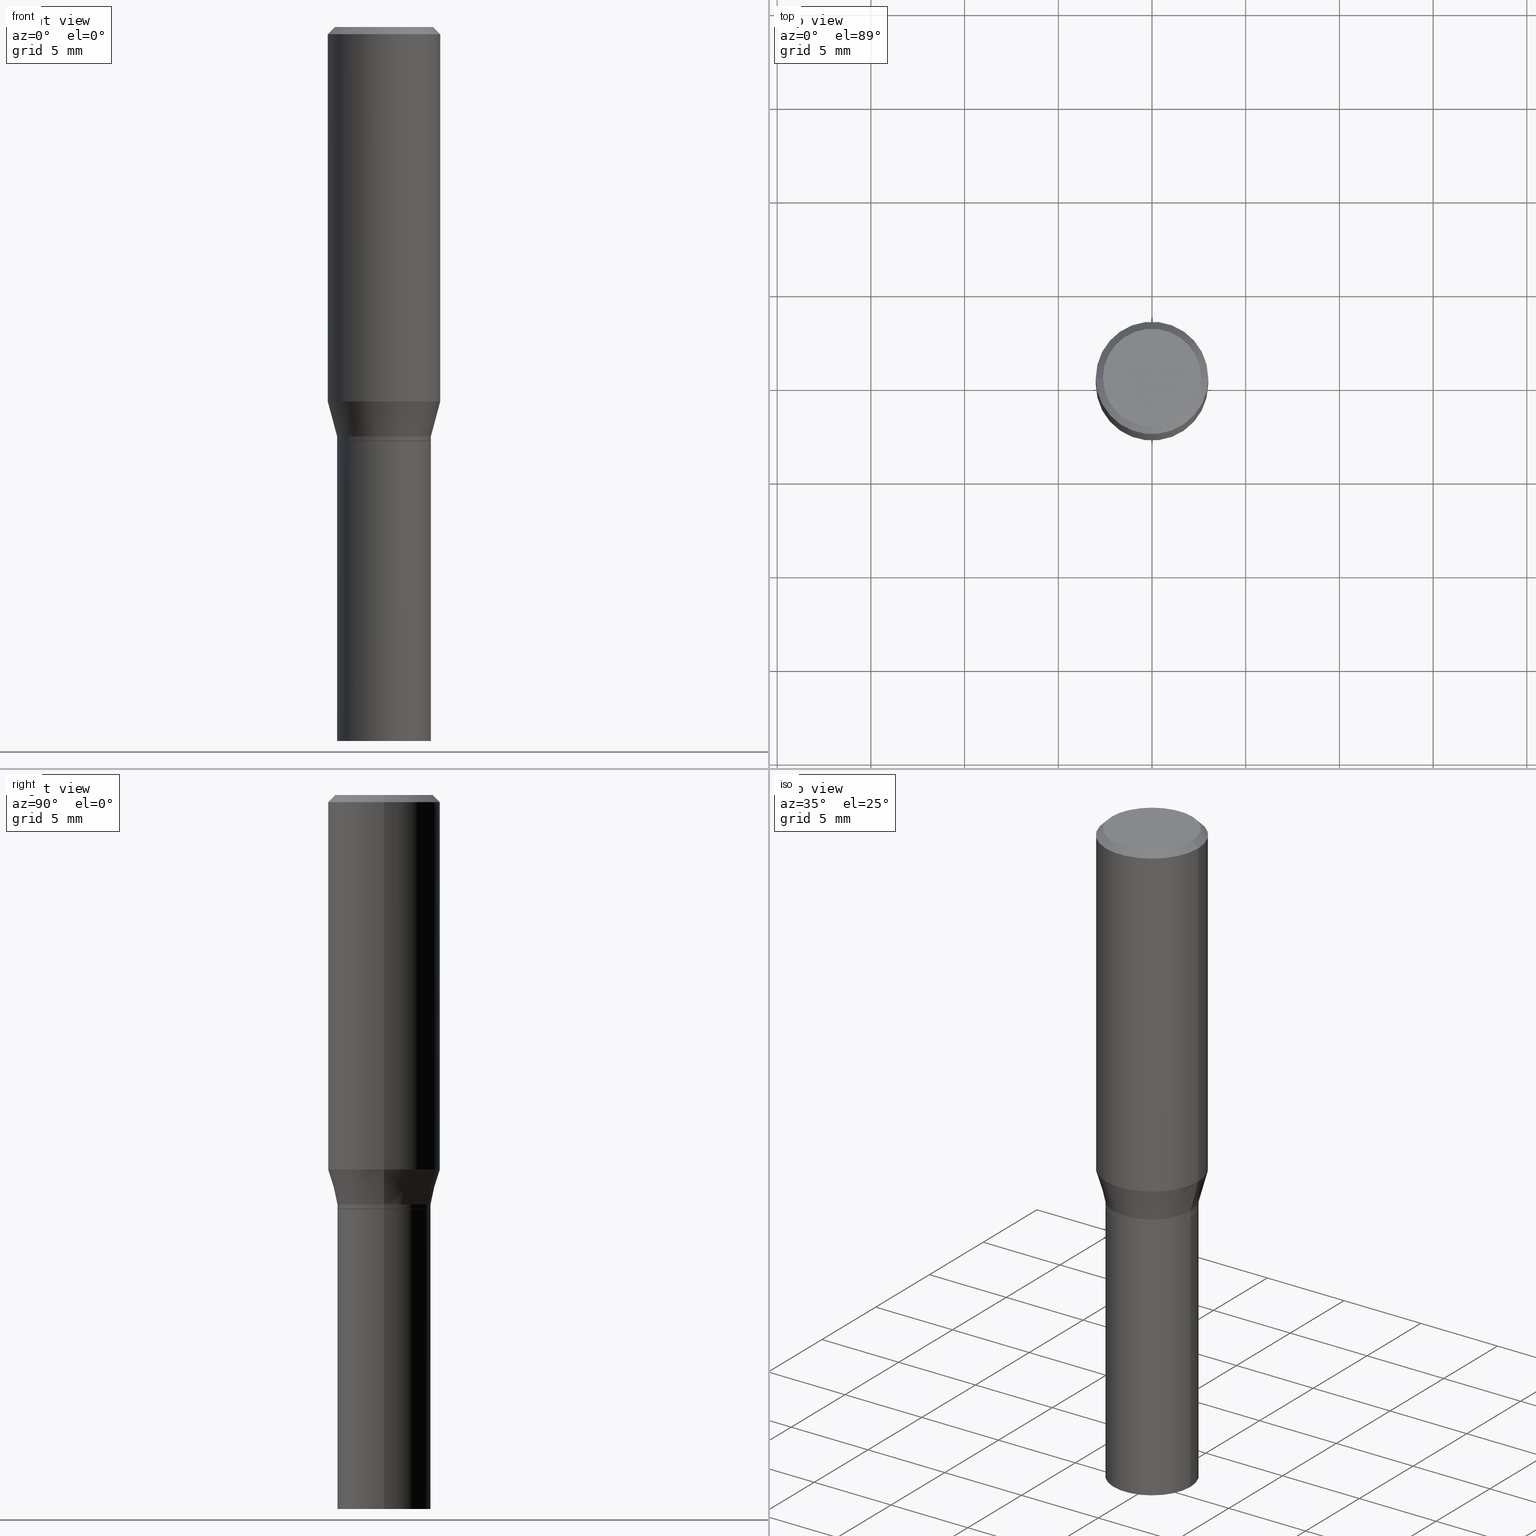
[diagram: canonical four-view strip — front | top / right | iso, engineering-drawing reading convention]
A machine part, canonical four-view strip (front | top / right | iso — engineering-drawing reading convention). The complete STEP part file that produces these views, byte-faithful:
ISO-10303-21;
HEADER;
FILE_DESCRIPTION (( 'STEP AP203' ),
    '1' );
FILE_NAME ('48786.STEP',
    '2024-03-12T19:50:16',
    ( '' ),
    ( '' ),
    'SwSTEP 2.0',
    'SolidWorks 2023',
    '' );
FILE_SCHEMA (( 'CONFIG_CONTROL_DESIGN' ));
ENDSEC;

DATA;
#1 = DATE_TIME_ROLE ( 'creation_date' ) ;
#2 = DIRECTION ( 'NONE',  ( -1.000000000000000000, 6.982962677686265922E-15, -4.876176775795935793E-29 ) ) ;
#3 = DIRECTION ( 'NONE',  ( -2.445468806185136597E-29, 3.491481338843145583E-15, 1.000000000000000000 ) ) ;
#4 = APPROVAL_STATUS ( 'not_yet_approved' ) ;
#5 = DIRECTION ( 'NONE',  ( -0.2588190451025215166, 5.211531920934551042E-15, 0.9659258262890679791 ) ) ;
#6 = AXIS2_PLACEMENT_3D ( 'NONE', #269, #305, #273 ) ;
#7 = CIRCLE ( 'NONE', #294, 0.09844999999999991258 ) ;
#8 = PERSON_AND_ORGANIZATION ( #227, #93 ) ;
#9 = DIRECTION ( 'NONE',  ( 1.000000000000000000, -6.982962677686265133E-15, 0.000000000000000000 ) ) ;
#10 = DIRECTION ( 'NONE',  ( 1.000000000000000000, -6.982962677686265922E-15, 0.000000000000000000 ) ) ;
#11 = EDGE_CURVE ( 'NONE', #99, #115, #21, .T. ) ;
#12 = ORIENTED_EDGE ( 'NONE', *, *, #279, .T. ) ;
#13 = CARTESIAN_POINT ( 'NONE',  ( 0.09844999999999999585, -5.924694683882931526E-15, -1.500000000000000222 ) ) ;
#14 = VECTOR ( 'NONE', #452, 39.37007874015748854 ) ;
#15 = AXIS2_PLACEMENT_3D ( 'NONE', #182, #287, #392 ) ;
#16 = DIMENSIONAL_EXPONENTS ( 1.000000000000000000, 0.000000000000000000, 0.000000000000000000, 0.000000000000000000, 0.000000000000000000, 0.000000000000000000, 0.000000000000000000 ) ;
#17 = CC_DESIGN_PERSON_AND_ORGANIZATION_ASSIGNMENT ( #8, #236, ( #383 ) ) ;
#18 = ORIENTED_EDGE ( 'NONE', *, *, #435, .T. ) ;
#19 = DIRECTION ( 'NONE',  ( 1.000000000000000000, -6.982962677686266711E-15, 0.000000000000000000 ) ) ;
#20 = ORIENTED_EDGE ( 'NONE', *, *, #232, .T. ) ;
#21 = CIRCLE ( 'NONE', #330, 0.1180999999999999966 ) ;
#22 =( GEOMETRIC_REPRESENTATION_CONTEXT ( 3 ) GLOBAL_UNCERTAINTY_ASSIGNED_CONTEXT ( ( #212 ) ) GLOBAL_UNIT_ASSIGNED_CONTEXT ( ( #164, #85, #374 ) ) REPRESENTATION_CONTEXT ( 'NONE', 'WORKASPACE' ) );
#23 = DIRECTION ( 'NONE',  ( -2.445468806185136597E-29, 3.491481338843145583E-15, 1.000000000000000000 ) ) ;
#24 = EDGE_CURVE ( 'NONE', #336, #99, #52, .T. ) ;
#25 = FACE_OUTER_BOUND ( 'NONE', #390, .T. ) ;
#26 = EDGE_LOOP ( 'NONE', ( #179, #144 ) ) ;
#27 = DIRECTION ( 'NONE',  ( -2.445468806185136597E-29, 3.491481338843145583E-15, 1.000000000000000000 ) ) ;
#28 = ORIENTED_EDGE ( 'NONE', *, *, #162, .F. ) ;
#29 = CARTESIAN_POINT ( 'NONE',  ( 6.874726756182340565E-16, 0.09844999999999695661, -0.8701000000000005397 ) ) ;
#30 = CIRCLE ( 'NONE', #303, 0.09794999999999999540 ) ;
#31 = LOCAL_TIME ( 15, 50, 16.00000000000000000, #393 ) ;
#32 = ORIENTED_EDGE ( 'NONE', *, *, #134, .T. ) ;
#33 = PERSON_AND_ORGANIZATION_ROLE ( 'creator' ) ;
#34 = DIRECTION ( 'NONE',  ( 1.000000000000000000, -6.982962677686266711E-15, 4.876176775795936353E-29 ) ) ;
#35 = VERTEX_POINT ( 'NONE', #200 ) ;
#36 = COORDINATED_UNIVERSAL_TIME_OFFSET ( 5, 0, .BEHIND. ) ;
#37 = PERSON_AND_ORGANIZATION ( #227, #93 ) ;
#38 = DIRECTION ( 'NONE',  ( 1.000000000000000000, -6.982962677686266711E-15, 4.876176775795935232E-29 ) ) ;
#39 = CIRCLE ( 'NONE', #117, 0.1031000000000000111 ) ;
#40 = LOCAL_TIME ( 15, 50, 16.00000000000000000, #399 ) ;
#41 = DIRECTION ( 'NONE',  ( -2.445468806185136597E-29, 3.491481338843145583E-15, 1.000000000000000000 ) ) ;
#42 = ADVANCED_FACE ( 'NONE', ( #142 ), #136, .F. ) ;
#43 = DIRECTION ( 'NONE',  ( 1.000000000000000000, -6.982962677686265922E-15, 0.000000000000000000 ) ) ;
#44 = FACE_OUTER_BOUND ( 'NONE', #128, .T. ) ;
#45 = VECTOR ( 'NONE', #177, 39.37007874015748143 ) ;
#46 = CARTESIAN_POINT ( 'NONE',  ( 2.126579673858595013E-29, -3.036192172257999703E-15, -0.8696000000000000396 ) ) ;
#47 = LINE ( 'NONE', #412, #249 ) ;
#48 = DIRECTION ( 'NONE',  ( -2.445468806185136877E-29, 3.491481338843145188E-15, 1.000000000000000000 ) ) ;
#49 = ORIENTED_EDGE ( 'NONE', *, *, #11, .T. ) ;
#50 = DIRECTION ( 'NONE',  ( -1.000000000000000000, 6.982962677686266711E-15, 0.000000000000000000 ) ) ;
#51 = EDGE_LOOP ( 'NONE', ( #253, #104, #449, #197 ) ) ;
#52 = LINE ( 'NONE', #342, #45 ) ;
#53 = EDGE_LOOP ( 'NONE', ( #107, #254, #296, #290 ) ) ;
#54 = LINE ( 'NONE', #275, #396 ) ;
#55 = ORIENTED_EDGE ( 'NONE', *, *, #79, .T. ) ;
#56 = AXIS2_PLACEMENT_3D ( 'NONE', #380, #132, #311 ) ;
#57 = LOCAL_TIME ( 15, 50, 16.00000000000000000, #36 ) ;
#58 = PLANE ( 'NONE',  #15 ) ;
#59 = LINE ( 'NONE', #288, #282 ) ;
#60 = DIRECTION ( 'NONE',  ( -2.445468806185136597E-29, 3.491481338843145583E-15, 1.000000000000000000 ) ) ;
#61 = CARTESIAN_POINT ( 'NONE',  ( 2.126579673858595013E-29, -3.036192172257999703E-15, -0.8696000000000000396 ) ) ;
#62 = CARTESIAN_POINT ( 'NONE',  ( 2.127802408261687814E-29, -3.037937912927421995E-15, -0.8701000000000002066 ) ) ;
#63 = ADVANCED_FACE ( 'NONE', ( #384 ), #325, .T. ) ;
#64 = EDGE_LOOP ( 'NONE', ( #344, #459, #181, #286 ) ) ;
#65 = VECTOR ( 'NONE', #5, 39.37007874015748143 ) ;
#66 = CARTESIAN_POINT ( 'NONE',  ( 0.09844999999999999585, -3.725410588545634555E-15, -0.8701000000000000956 ) ) ;
#67 = ORIENTED_EDGE ( 'NONE', *, *, #217, .F. ) ;
#68 = ORIENTED_EDGE ( 'NONE', *, *, #190, .F. ) ;
#69 = APPROVAL_ROLE ( '' ) ;
#70 = EDGE_LOOP ( 'NONE', ( #438, #141, #349, #68 ) ) ;
#71 = DIRECTION ( 'NONE',  ( 1.000000000000000000, -6.982962677686267499E-15, 0.000000000000000000 ) ) ;
#72 = EDGE_LOOP ( 'NONE', ( #204, #237, #397, #417 ) ) ;
#73 = AXIS2_PLACEMENT_3D ( 'NONE', #170, #411, #442 ) ;
#74 = APPROVAL_PERSON_ORGANIZATION ( #37, #436, #69 ) ;
#75 = ORIENTED_EDGE ( 'NONE', *, *, #224, .F. ) ;
#76 = APPROVAL_ROLE ( '' ) ;
#77 = CARTESIAN_POINT ( 'NONE',  ( -0.1031000000000000111, 7.461295621107772493E-16, -1.900413116462341961E-16 ) ) ;
#78 = COORDINATED_UNIVERSAL_TIME_OFFSET ( 5, 0, .BEHIND. ) ;
#79 = EDGE_CURVE ( 'NONE', #35, #373, #218, .T. ) ;
#80 = CARTESIAN_POINT ( 'NONE',  ( 0.000000000000000000, 0.000000000000000000, 0.000000000000000000 ) ) ;
#81 = CIRCLE ( 'NONE', #465, 0.1180999999999999966 ) ;
#82 = AXIS2_PLACEMENT_3D ( 'NONE', #450, #446, #146 ) ;
#83 = DIRECTION ( 'NONE',  ( 1.000000000000000000, -6.982962677686266711E-15, 0.000000000000000000 ) ) ;
#84 = DESIGN_CONTEXT ( 'detailed design', #401, 'design' ) ;
#85 =( NAMED_UNIT ( * ) PLANE_ANGLE_UNIT ( ) SI_UNIT ( $, .RADIAN. ) );
#86 = ADVANCED_FACE ( 'NONE', ( #111 ), #359, .T. ) ;
#87 = DIRECTION ( 'NONE',  ( -2.445468806185136597E-29, 3.491481338843145583E-15, 1.000000000000000000 ) ) ;
#88 = FACE_OUTER_BOUND ( 'NONE', #293, .T. ) ;
#89 = LINE ( 'NONE', #371, #230 ) ;
#90 = ORIENTED_EDGE ( 'NONE', *, *, #408, .T. ) ;
#91 = AXIS2_PLACEMENT_3D ( 'NONE', #157, #87, #10 ) ;
#92 = EDGE_CURVE ( 'NONE', #147, #451, #431, .T. ) ;
#93 = ORGANIZATION ( 'UNSPECIFIED', 'UNSPECIFIED', '' ) ;
#94 = EDGE_LOOP ( 'NONE', ( #308, #166, #241, #28 ) ) ;
#95 = DIRECTION ( 'NONE',  ( -2.445468806185136597E-29, 3.491481338843145583E-15, 1.000000000000000000 ) ) ;
#96 = ORIENTED_EDGE ( 'NONE', *, *, #354, .T. ) ;
#97 = DIRECTION ( 'NONE',  ( 1.000000000000000000, -6.982962677686269077E-15, 0.000000000000000000 ) ) ;
#98 = VERTEX_POINT ( 'NONE', #149 ) ;
#99 = VERTEX_POINT ( 'NONE', #184 ) ;
#100 = VECTOR ( 'NONE', #440, 39.37007874015748143 ) ;
#101 = CC_DESIGN_APPROVAL ( #436, ( #383 ) ) ;
#102 = EDGE_CURVE ( 'NONE', #140, #386, #388, .T. ) ;
#103 = DIRECTION ( 'NONE',  ( 2.438088387897960049E-29, -3.491481338843145188E-15, -1.000000000000000000 ) ) ;
#104 = ORIENTED_EDGE ( 'NONE', *, *, #169, .T. ) ;
#105 = CARTESIAN_POINT ( 'NONE',  ( 0.09844999999999991258, -3.723664847876212263E-15, -0.8696000000000000396 ) ) ;
#106 = MANIFOLD_SOLID_BREP ( 'Body-Move/Copy2[1]', #139 ) ;
#107 = ORIENTED_EDGE ( 'NONE', *, *, #435, .F. ) ;
#108 = AXIS2_PLACEMENT_3D ( 'NONE', #453, #150, #176 ) ;
#109 = CC_DESIGN_PERSON_AND_ORGANIZATION_ASSIGNMENT ( #116, #213, ( #264 ) ) ;
#110 = DIRECTION ( 'NONE',  ( -1.000000000000000000, 6.982962677686266711E-15, 0.000000000000000000 ) ) ;
#111 = FACE_OUTER_BOUND ( 'NONE', #72, .T. ) ;
#112 = CARTESIAN_POINT ( 'NONE',  ( 0.000000000000000000, 0.000000000000000000, 0.000000000000000000 ) ) ;
#113 = DIRECTION ( 'NONE',  ( -2.445468806185136597E-29, 3.491481338843145583E-15, 1.000000000000000000 ) ) ;
#114 = EDGE_CURVE ( 'NONE', #147, #98, #39, .T. ) ;
#115 = VERTEX_POINT ( 'NONE', #266 ) ;
#116 = PERSON_AND_ORGANIZATION ( #227, #93 ) ;
#117 = AXIS2_PLACEMENT_3D ( 'NONE', #152, #3, #437 ) ;
#118 = MANIFOLD_SOLID_BREP ( 'Body-Move/Copy2[2]', #423 ) ;
#119 = EDGE_CURVE ( 'NONE', #386, #115, #369, .T. ) ;
#120 = APPLICATION_CONTEXT ( 'configuration controlled 3d designs of mechanical parts and assemblies' ) ;
#121 = CIRCLE ( 'NONE', #368, 0.09794999999999999540 ) ;
#122 = AXIS2_PLACEMENT_3D ( 'NONE', #135, #262, #83 ) ;
#123 = DATE_AND_TIME ( #161, #57 ) ;
#124 = CARTESIAN_POINT ( 'NONE',  ( 0.1180999999999999966, -8.770601123173952432E-16, -0.01499999999999999944 ) ) ;
#125 = EDGE_CURVE ( 'NONE', #140, #373, #7, .T. ) ;
#126 = FACE_OUTER_BOUND ( 'NONE', #350, .T. ) ;
#127 = CC_DESIGN_DATE_AND_TIME_ASSIGNMENT ( #327, #422, ( #383 ) ) ;
#128 = EDGE_LOOP ( 'NONE', ( #444, #316 ) ) ;
#129 =( LENGTH_UNIT ( ) NAMED_UNIT ( * ) SI_UNIT ( $, .METRE. ) );
#130 = DIRECTION ( 'NONE',  ( -2.445468806185136597E-29, 3.491481338843145583E-15, 1.000000000000000000 ) ) ;
#131 = FACE_OUTER_BOUND ( 'NONE', #53, .T. ) ;
#132 = DIRECTION ( 'NONE',  ( -2.445468806185136597E-29, 3.491481338843145583E-15, 1.000000000000000000 ) ) ;
#133 = DIRECTION ( 'NONE',  ( 1.000000000000000000, -6.982962677686266711E-15, 4.876176775795936353E-29 ) ) ;
#134 = EDGE_CURVE ( 'NONE', #283, #35, #121, .T. ) ;
#135 = CARTESIAN_POINT ( 'NONE',  ( 3.668203209277705088E-31, -5.237222008264718399E-17, -0.01499999999999999944 ) ) ;
#136 = PLANE ( 'NONE',  #191 ) ;
#137 = DIRECTION ( 'NONE',  ( 2.438088387897960049E-29, -3.491481338843145188E-15, -1.000000000000000000 ) ) ;
#138 = FACE_OUTER_BOUND ( 'NONE', #64, .T. ) ;
#139 = CLOSED_SHELL ( 'NONE', ( #160, #202, #445, #398 ) ) ;
#140 = VERTEX_POINT ( 'NONE', #205 ) ;
#141 = ORIENTED_EDGE ( 'NONE', *, *, #260, .T. ) ;
#142 = FACE_OUTER_BOUND ( 'NONE', #26, .T. ) ;
#143 = CC_DESIGN_PERSON_AND_ORGANIZATION_ASSIGNMENT ( #270, #188, ( #310 ) ) ;
#144 = ORIENTED_EDGE ( 'NONE', *, *, #426, .T. ) ;
#145 = ORIENTED_EDGE ( 'NONE', *, *, #154, .F. ) ;
#146 = DIRECTION ( 'NONE',  ( 1.000000000000000000, -6.982962677686267499E-15, 0.000000000000000000 ) ) ;
#147 = VERTEX_POINT ( 'NONE', #77 ) ;
#148 = VERTEX_POINT ( 'NONE', #389 ) ;
#149 = CARTESIAN_POINT ( 'NONE',  ( 0.1031000000000000111, -7.849571885948552706E-16, -1.900413116462238423E-16 ) ) ;
#150 = DIRECTION ( 'NONE',  ( -2.445468806185136597E-29, 3.491481338843145583E-15, 1.000000000000000000 ) ) ;
#151 = CIRCLE ( 'NONE', #122, 0.1180999999999999966 ) ;
#152 = CARTESIAN_POINT ( 'NONE',  ( 4.647400995173613138E-45, -6.635256932220833331E-31, -1.900413116462290932E-16 ) ) ;
#153 = DIRECTION ( 'NONE',  ( -2.445468806185136597E-29, 3.491481338843145583E-15, 1.000000000000000000 ) ) ;
#154 = EDGE_CURVE ( 'NONE', #336, #386, #299, .T. ) ;
#155 = SHAPE_DEFINITION_REPRESENTATION ( #394, #372 ) ;
#156 = CARTESIAN_POINT ( 'NONE',  ( 0.000000000000000000, 0.000000000000000000, 0.000000000000000000 ) ) ;
#157 = CARTESIAN_POINT ( 'NONE',  ( 2.127802408261687534E-29, -3.037937912927421601E-15, -0.8701000000000000956 ) ) ;
#158 = VECTOR ( 'NONE', #324, 39.37007874015748143 ) ;
#159 = CC_DESIGN_SECURITY_CLASSIFICATION ( #383, ( #310 ) ) ;
#160 = ADVANCED_FACE ( 'NONE', ( #460 ), #297, .T. ) ;
#161 = CALENDAR_DATE ( 2024, 12, 3 ) ;
#162 = EDGE_CURVE ( 'NONE', #244, #378, #405, .T. ) ;
#163 = CIRCLE ( 'NONE', #271, 0.09844999999999999585 ) ;
#164 =( CONVERSION_BASED_UNIT ( 'INCH', #337 ) LENGTH_UNIT ( ) NAMED_UNIT ( #16 ) );
#165 = CARTESIAN_POINT ( 'NONE',  ( 2.103347720199836269E-29, -3.003023099538989951E-15, -0.8601000000000000867 ) ) ;
#166 = ORIENTED_EDGE ( 'NONE', *, *, #276, .T. ) ;
#167 = CARTESIAN_POINT ( 'NONE',  ( -0.09844999999999999585, -3.438050637240251581E-15, -0.8701000000000000956 ) ) ;
#168 = ORIENTED_EDGE ( 'NONE', *, *, #125, .F. ) ;
#169 = EDGE_CURVE ( 'NONE', #386, #336, #455, .T. ) ;
#170 = CARTESIAN_POINT ( 'NONE',  ( 3.668203209277704895E-29, -5.237222008264718177E-15, -1.500000000000000222 ) ) ;
#171 = VECTOR ( 'NONE', #403, 39.37007874015748143 ) ;
#172 = CARTESIAN_POINT ( 'NONE',  ( 0.000000000000000000, 0.000000000000000000, 0.000000000000000000 ) ) ;
#173 = CARTESIAN_POINT ( 'NONE',  ( -0.09794999999999999540, -2.339312076076292793E-15, -0.8701000000000002066 ) ) ;
#174 = CARTESIAN_POINT ( 'NONE',  ( 0.000000000000000000, 0.000000000000000000, 0.000000000000000000 ) ) ;
#175 = EDGE_CURVE ( 'NONE', #451, #425, #208, .T. ) ;
#176 = DIRECTION ( 'NONE',  ( 1.000000000000000000, -6.982962677686266711E-15, 4.876176775795936353E-29 ) ) ;
#177 = DIRECTION ( 'NONE',  ( 0.2588190451025215166, 1.565188264969620784E-15, 0.9659258262890679791 ) ) ;
#178 = VECTOR ( 'NONE', #357, 39.37007874015748143 ) ;
#179 = ORIENTED_EDGE ( 'NONE', *, *, #114, .T. ) ;
#180 = EDGE_LOOP ( 'NONE', ( #375, #12, #387, #274 ) ) ;
#181 = ORIENTED_EDGE ( 'NONE', *, *, #92, .T. ) ;
#182 = CARTESIAN_POINT ( 'NONE',  ( 2.127802408261687534E-29, -3.037937912927421601E-15, -0.8701000000000000956 ) ) ;
#183 = DIRECTION ( 'NONE',  ( 2.445468806185136597E-29, -3.491481338843145583E-15, -1.000000000000000000 ) ) ;
#184 = CARTESIAN_POINT ( 'NONE',  ( 0.1180999999999999966, -3.571663911781501372E-15, -0.7867652016312725038 ) ) ;
#185 = CC_DESIGN_PERSON_AND_ORGANIZATION_ASSIGNMENT ( #289, #457, ( #207 ) ) ;
#186 = CONICAL_SURFACE ( 'NONE', #6, 0.09845000000000017626, 0.2617993877991502405 ) ;
#187 = APPROVAL_PERSON_ORGANIZATION ( #301, #203, #76 ) ;
#188 = PERSON_AND_ORGANIZATION_ROLE ( 'design_supplier' ) ;
#189 = PERSON_AND_ORGANIZATION ( #227, #93 ) ;
#190 = EDGE_CURVE ( 'NONE', #268, #378, #464, .T. ) ;
#191 = AXIS2_PLACEMENT_3D ( 'NONE', #285, #103, #247 ) ;
#192 = DIRECTION ( 'NONE',  ( 1.000000000000000000, -6.982962677686265922E-15, 4.883331232093008327E-29 ) ) ;
#193 = EDGE_CURVE ( 'NONE', #115, #99, #81, .T. ) ;
#194 = ORIENTED_EDGE ( 'NONE', *, *, #119, .T. ) ;
#195 = DIRECTION ( 'NONE',  ( -2.445468806185136597E-29, 3.491481338843145583E-15, 1.000000000000000000 ) ) ;
#196 = ADVANCED_FACE ( 'NONE', ( #88 ), #304, .T. ) ;
#197 = ORIENTED_EDGE ( 'NONE', *, *, #193, .F. ) ;
#198 = PRODUCT_RELATED_PRODUCT_CATEGORY ( 'detail', '', ( #264 ) ) ;
#199 = DIRECTION ( 'NONE',  ( -0.7071067811863663843, 7.493145998869699406E-15, 0.7071067811867286501 ) ) ;
#200 = CARTESIAN_POINT ( 'NONE',  ( 0.09794999999999999540, -3.721919107206791548E-15, -0.8701000000000002066 ) ) ;
#201 = AXIS2_PLACEMENT_3D ( 'NONE', #174, #427, #251 ) ;
#202 = ADVANCED_FACE ( 'NONE', ( #267 ), #402, .F. ) ;
#203 = APPROVAL ( #4, 'UNSPECIFIED' ) ;
#204 = ORIENTED_EDGE ( 'NONE', *, *, #102, .F. ) ;
#205 = CARTESIAN_POINT ( 'NONE',  ( -0.09844999999999991258, -2.336662848902181986E-15, -0.8696000000000000396 ) ) ;
#206 = DIRECTION ( 'NONE',  ( -2.445468806185136597E-29, 3.491481338843145583E-15, 1.000000000000000000 ) ) ;
#207 = PRODUCT_DEFINITION ( 'UNKNOWN', '', #310, #84 ) ;
#208 = CIRCLE ( 'NONE', #395, 0.1180999999999999966 ) ;
#209 = FACE_OUTER_BOUND ( 'NONE', #180, .T. ) ;
#210 = ORIENTED_EDGE ( 'NONE', *, *, #279, .F. ) ;
#211 = ORIENTED_EDGE ( 'NONE', *, *, #92, .F. ) ;
#212 = UNCERTAINTY_MEASURE_WITH_UNIT (LENGTH_MEASURE( 1.000000000000000082E-05 ), #164, 'distance_accuracy_value', 'NONE');
#213 = PERSON_AND_ORGANIZATION_ROLE ( 'design_owner' ) ;
#214 = EDGE_LOOP ( 'NONE', ( #351, #96, #90, #211 ) ) ;
#215 = DATE_AND_TIME ( #220, #31 ) ;
#216 = COORDINATED_UNIVERSAL_TIME_OFFSET ( 5, 0, .BEHIND. ) ;
#217 = EDGE_CURVE ( 'NONE', #373, #336, #47, .T. ) ;
#218 = LINE ( 'NONE', #348, #158 ) ;
#219 = DATE_AND_TIME ( #318, #40 ) ;
#220 = CALENDAR_DATE ( 2024, 12, 3 ) ;
#221 = CARTESIAN_POINT ( 'NONE',  ( 0.09845000000000017626, -3.690495775157203695E-15, -0.8601000000000000867 ) ) ;
#222 = CIRCLE ( 'NONE', #73, 0.09844999999999999585 ) ;
#223 = CARTESIAN_POINT ( 'NONE',  ( 0.09844999999999999585, -6.874726756182129545E-16, 4.800596035771099214E-30 ) ) ;
#224 = EDGE_CURVE ( 'NONE', #268, #148, #163, .T. ) ;
#225 = APPROVAL_ROLE ( '' ) ;
#226 = CALENDAR_DATE ( 2024, 12, 3 ) ;
#227 = PERSON ( 'UNSPECIFIED', 'UNSPECIFIED', 'UNSPECIFIED', ('UNSPECIFIED'), ('UNSPECIFIED'), ('UNSPECIFIED') ) ;
#228 = VECTOR ( 'NONE', #458, 39.37007874015748143 ) ;
#229 = SECURITY_CLASSIFICATION_LEVEL ( 'unclassified' ) ;
#230 = VECTOR ( 'NONE', #48, 39.37007874015748143 ) ;
#231 = CARTESIAN_POINT ( 'NONE',  ( 3.668203209277704895E-29, -5.237222008264718177E-15, -1.500000000000000222 ) ) ;
#232 = EDGE_CURVE ( 'NONE', #378, #244, #414, .T. ) ;
#233 = CARTESIAN_POINT ( 'NONE',  ( 2.127802408261687814E-29, -3.037937912927421995E-15, -0.8701000000000002066 ) ) ;
#234 = DATE_AND_TIME ( #326, #261 ) ;
#235 = CARTESIAN_POINT ( 'NONE',  ( 3.576687321579069994E-29, -5.368277968210015545E-15, -1.500000000000000222 ) ) ;
#236 = PERSON_AND_ORGANIZATION_ROLE ( 'classification_officer' ) ;
#237 = ORIENTED_EDGE ( 'NONE', *, *, #125, .T. ) ;
#238 = AXIS2_PLACEMENT_3D ( 'NONE', #366, #410, #192 ) ;
#239 = ADVANCED_FACE ( 'NONE', ( #138 ), #361, .T. ) ;
#240 = CARTESIAN_POINT ( 'NONE',  ( -0.09845000000000017626, -2.303493776183169474E-15, -0.8601000000000000867 ) ) ;
#241 = ORIENTED_EDGE ( 'NONE', *, *, #190, .T. ) ;
#242 = DIRECTION ( 'NONE',  ( -2.438088387897960049E-29, 3.491481338843145188E-15, 1.000000000000000000 ) ) ;
#243 = LINE ( 'NONE', #377, #171 ) ;
#244 = VERTEX_POINT ( 'NONE', #167 ) ;
#245 = FACE_OUTER_BOUND ( 'NONE', #379, .T. ) ;
#246 = LOCAL_TIME ( 15, 50, 16.00000000000000000, #78 ) ;
#247 = DIRECTION ( 'NONE',  ( -1.000000000000000000, 6.982962677686265922E-15, -4.876176775795935793E-29 ) ) ;
#248 = ORIENTED_EDGE ( 'NONE', *, *, #439, .F. ) ;
#249 = VECTOR ( 'NONE', #338, 39.37007874015748143 ) ;
#250 = CIRCLE ( 'NONE', #295, 0.09844999999999991258 ) ;
#251 = DIRECTION ( 'NONE',  ( 1.000000000000000000, 0.000000000000000000, 0.000000000000000000 ) ) ;
#252 = ADVANCED_FACE ( 'NONE', ( #245 ), #186, .T. ) ;
#253 = ORIENTED_EDGE ( 'NONE', *, *, #119, .F. ) ;
#254 = ORIENTED_EDGE ( 'NONE', *, *, #193, .T. ) ;
#255 = DIRECTION ( 'NONE',  ( 1.000000000000000000, -6.982962677686266711E-15, 0.000000000000000000 ) ) ;
#256 = EDGE_CURVE ( 'NONE', #35, #283, #30, .T. ) ;
#257 = APPLICATION_PROTOCOL_DEFINITION ( 'international standard', 'config_control_design', 1994, #401 ) ;
#258 = ORIENTED_EDGE ( 'NONE', *, *, #408, .F. ) ;
#259 = CYLINDRICAL_SURFACE ( 'NONE', #466, 0.09845000000000005136 ) ;
#260 = EDGE_CURVE ( 'NONE', #148, #244, #335, .T. ) ;
#261 = LOCAL_TIME ( 15, 50, 16.00000000000000000, #216 ) ;
#262 = DIRECTION ( 'NONE',  ( -2.445468806185136597E-29, 3.491481338843145583E-15, 1.000000000000000000 ) ) ;
#263 = APPROVAL ( #433, 'UNSPECIFIED' ) ;
#264 = PRODUCT ( '48786', '48786', '', ( #419 ) ) ;
#265 = DIRECTION ( 'NONE',  ( 1.000000000000000000, -6.982962677686265133E-15, 0.000000000000000000 ) ) ;
#266 = CARTESIAN_POINT ( 'NONE',  ( -0.1180999999999999966, -1.907825048614074518E-15, -0.7867652016312725038 ) ) ;
#267 = FACE_OUTER_BOUND ( 'NONE', #315, .T. ) ;
#268 = VERTEX_POINT ( 'NONE', #13 ) ;
#269 = CARTESIAN_POINT ( 'NONE',  ( 2.103347720199836269E-29, -3.003023099538989951E-15, -0.8601000000000000867 ) ) ;
#270 = PERSON_AND_ORGANIZATION ( #227, #93 ) ;
#271 = AXIS2_PLACEMENT_3D ( 'NONE', #231, #363, #43 ) ;
#272 = AXIS2_PLACEMENT_3D ( 'NONE', #29, #137, #2 ) ;
#273 = DIRECTION ( 'NONE',  ( 1.000000000000000000, -6.982962677686267499E-15, 0.000000000000000000 ) ) ;
#274 = ORIENTED_EDGE ( 'NONE', *, *, #79, .F. ) ;
#275 = CARTESIAN_POINT ( 'NONE',  ( -0.09794999999999999540, -2.341961303250403994E-15, -0.8701000000000002066 ) ) ;
#276 = EDGE_CURVE ( 'NONE', #148, #268, #222, .T. ) ;
#277 = ORIENTED_EDGE ( 'NONE', *, *, #24, .F. ) ;
#278 = ORIENTED_EDGE ( 'NONE', *, *, #162, .T. ) ;
#279 = EDGE_CURVE ( 'NONE', #283, #140, #54, .T. ) ;
#280 = AXIS2_PLACEMENT_3D ( 'NONE', #112, #391, #34 ) ;
#281 = CARTESIAN_POINT ( 'NONE',  ( 3.668203209277705088E-31, -5.237222008264718399E-17, -0.01499999999999999944 ) ) ;
#282 = VECTOR ( 'NONE', #418, 39.37007874015748854 ) ;
#283 = VERTEX_POINT ( 'NONE', #173 ) ;
#284 = FACE_OUTER_BOUND ( 'NONE', #214, .T. ) ;
#285 = CARTESIAN_POINT ( 'NONE',  ( 7.199434520694541042E-16, 0.1031000000000000111, -4.549923818578428559E-16 ) ) ;
#286 = ORIENTED_EDGE ( 'NONE', *, *, #175, .T. ) ;
#287 = DIRECTION ( 'NONE',  ( -2.438088387897960049E-29, 3.491481338843145188E-15, 1.000000000000000000 ) ) ;
#288 = CARTESIAN_POINT ( 'NONE',  ( 0.1180999999999999966, -8.625970336194650129E-16, -0.01499999999999999944 ) ) ;
#289 = PERSON_AND_ORGANIZATION ( #227, #93 ) ;
#290 = ORIENTED_EDGE ( 'NONE', *, *, #175, .F. ) ;
#291 = DIRECTION ( 'NONE',  ( 1.000000000000000000, -6.982962677686266711E-15, 4.876176775795936353E-29 ) ) ;
#292 = APPROVAL_STATUS ( 'not_yet_approved' ) ;
#293 = EDGE_LOOP ( 'NONE', ( #49, #18, #258, #248 ) ) ;
#294 = AXIS2_PLACEMENT_3D ( 'NONE', #46, #358, #364 ) ;
#295 = AXIS2_PLACEMENT_3D ( 'NONE', #61, #206, #19 ) ;
#296 = ORIENTED_EDGE ( 'NONE', *, *, #439, .T. ) ;
#297 = CYLINDRICAL_SURFACE ( 'NONE', #280, 0.09844999999999999585 ) ;
#298 = DIRECTION ( 'NONE',  ( 1.000000000000000000, -6.982962677686265133E-15, 0.000000000000000000 ) ) ;
#299 = CIRCLE ( 'NONE', #441, 0.09845000000000017626 ) ;
#300 = PLANE ( 'NONE',  #272 ) ;
#301 = PERSON_AND_ORGANIZATION ( #227, #93 ) ;
#302 = DIRECTION ( 'NONE',  ( 1.000000000000000000, -6.982962677686267499E-15, 0.000000000000000000 ) ) ;
#303 = AXIS2_PLACEMENT_3D ( 'NONE', #333, #95, #9 ) ;
#304 = CYLINDRICAL_SURFACE ( 'NONE', #400, 0.1180999999999999966 ) ;
#305 = DIRECTION ( 'NONE',  ( -2.445468806185136597E-29, 3.491481338843145583E-15, 1.000000000000000000 ) ) ;
#306 = ORIENTED_EDGE ( 'NONE', *, *, #154, .T. ) ;
#307 = CARTESIAN_POINT ( 'NONE',  ( -0.09844999999999999585, 6.995293233558186035E-16, -4.842691596355954042E-30 ) ) ;
#308 = ORIENTED_EDGE ( 'NONE', *, *, #260, .F. ) ;
#309 = AXIS2_PLACEMENT_3D ( 'NONE', #165, #41, #302 ) ;
#310 = PRODUCT_DEFINITION_FORMATION_WITH_SPECIFIED_SOURCE ( 'ANY', '', #264, .NOT_KNOWN. ) ;
#311 = DIRECTION ( 'NONE',  ( 1.000000000000000000, -6.982962677686265922E-15, 0.000000000000000000 ) ) ;
#312 = ADVANCED_FACE ( 'NONE', ( #44 ), #58, .F. ) ;
#313 = CARTESIAN_POINT ( 'NONE',  ( -0.1180999999999999966, -5.605231488820216014E-16, -0.01499999999999999944 ) ) ;
#314 = AXIS2_PLACEMENT_3D ( 'NONE', #156, #461, #38 ) ;
#315 = EDGE_LOOP ( 'NONE', ( #75, #385 ) ) ;
#316 = ORIENTED_EDGE ( 'NONE', *, *, #134, .F. ) ;
#317 = ADVANCED_FACE ( 'NONE', ( #209 ), #345, .T. ) ;
#318 = CALENDAR_DATE ( 2024, 12, 3 ) ;
#319 = CARTESIAN_POINT ( 'NONE',  ( 2.127802408261687814E-29, -3.037937912927421995E-15, -0.8701000000000002066 ) ) ;
#320 = CARTESIAN_POINT ( 'NONE',  ( 3.668203209277705088E-31, -5.237222008264718399E-17, -0.01499999999999999944 ) ) ;
#321 = CARTESIAN_POINT ( 'NONE',  ( -0.1180999999999999966, 7.723156721521009862E-16, -0.01499999999999999944 ) ) ;
#322 = CARTESIAN_POINT ( 'NONE',  ( -0.09845000000000005136, 6.995293233558189979E-16, -4.842691596355956844E-30 ) ) ;
#323 = CC_DESIGN_APPROVAL ( #203, ( #310 ) ) ;
#324 = DIRECTION ( 'NONE',  ( 0.7071067811863663843, -2.468850131080359456E-15, 0.7071067811867286501 ) ) ;
#325 = CONICAL_SURFACE ( 'NONE', #355, 0.09794999999999999540, 0.7853981633971921505 ) ;
#326 = CALENDAR_DATE ( 2024, 12, 3 ) ;
#327 = DATE_AND_TIME ( #226, #246 ) ;
#328 = EDGE_CURVE ( 'NONE', #373, #140, #250, .T. ) ;
#329 = DIRECTION ( 'NONE',  ( -2.445468806185136597E-29, 3.491481338843145583E-15, 1.000000000000000000 ) ) ;
#330 = AXIS2_PLACEMENT_3D ( 'NONE', #416, #60, #97 ) ;
#331 = DIRECTION ( 'NONE',  ( 1.000000000000000000, -6.982962677686269077E-15, 0.000000000000000000 ) ) ;
#332 = CC_DESIGN_PERSON_AND_ORGANIZATION_ASSIGNMENT ( #356, #33, ( #310 ) ) ;
#333 = CARTESIAN_POINT ( 'NONE',  ( 2.127802408261687814E-29, -3.037937912927421995E-15, -0.8701000000000002066 ) ) ;
#334 = DIRECTION ( 'NONE',  ( -2.445468806185136597E-29, 3.491481338843145583E-15, 1.000000000000000000 ) ) ;
#335 = LINE ( 'NONE', #307, #100 ) ;
#336 = VERTEX_POINT ( 'NONE', #221 ) ;
#337 = LENGTH_MEASURE_WITH_UNIT ( LENGTH_MEASURE( 0.02539999999999999897 ), #129 );
#338 = DIRECTION ( 'NONE',  ( -2.445468806185136877E-29, 3.491481338843145188E-15, 1.000000000000000000 ) ) ;
#339 = CYLINDRICAL_SURFACE ( 'NONE', #340, 0.1180999999999999966 ) ;
#340 = AXIS2_PLACEMENT_3D ( 'NONE', #172, #329, #291 ) ;
#341 = FACE_OUTER_BOUND ( 'NONE', #94, .T. ) ;
#342 = CARTESIAN_POINT ( 'NONE',  ( 0.09845000000000017626, -3.690495775157203695E-15, -0.8601000000000000867 ) ) ;
#343 = ADVANCED_FACE ( 'NONE', ( #448 ), #432, .T. ) ;
#344 = ORIENTED_EDGE ( 'NONE', *, *, #354, .F. ) ;
#345 = CONICAL_SURFACE ( 'NONE', #406, 0.09794999999999999540, 0.7853981633971921505 ) ;
#346 = ORIENTED_EDGE ( 'NONE', *, *, #102, .T. ) ;
#347 = CARTESIAN_POINT ( 'NONE',  ( -0.09845000000000017626, -2.105659412398621996E-15, -0.8601000000000000867 ) ) ;
#348 = CARTESIAN_POINT ( 'NONE',  ( 0.09794999999999999540, -3.721919107206791548E-15, -0.8701000000000002066 ) ) ;
#349 = ORIENTED_EDGE ( 'NONE', *, *, #232, .F. ) ;
#350 = EDGE_LOOP ( 'NONE', ( #413, #346, #145, #67 ) ) ;
#351 = ORIENTED_EDGE ( 'NONE', *, *, #426, .F. ) ;
#352 = APPROVAL_DATE_TIME ( #219, #263 ) ;
#353 = CARTESIAN_POINT ( 'NONE',  ( 3.668203209277705088E-31, -5.237222008264718399E-17, -0.01499999999999999944 ) ) ;
#354 = EDGE_CURVE ( 'NONE', #98, #425, #59, .T. ) ;
#355 = AXIS2_PLACEMENT_3D ( 'NONE', #62, #23, #407 ) ;
#356 = PERSON_AND_ORGANIZATION ( #227, #93 ) ;
#357 = DIRECTION ( 'NONE',  ( -2.445468806185136877E-29, 3.491481338843145188E-15, 1.000000000000000000 ) ) ;
#358 = DIRECTION ( 'NONE',  ( -2.445468806185136597E-29, 3.491481338843145583E-15, 1.000000000000000000 ) ) ;
#359 = CYLINDRICAL_SURFACE ( 'NONE', #314, 0.09845000000000005136 ) ;
#360 = CARTESIAN_POINT ( 'NONE',  ( 2.103347720199836269E-29, -3.003023099538989951E-15, -0.8601000000000000867 ) ) ;
#361 = CONICAL_SURFACE ( 'NONE', #382, 0.1180999999999999966, 0.7853981633974543852 ) ;
#362 = APPROVAL_PERSON_ORGANIZATION ( #189, #263, #225 ) ;
#363 = DIRECTION ( 'NONE',  ( -2.445468806185136597E-29, 3.491481338843145583E-15, 1.000000000000000000 ) ) ;
#364 = DIRECTION ( 'NONE',  ( 1.000000000000000000, -6.982962677686266711E-15, 0.000000000000000000 ) ) ;
#365 = CC_DESIGN_DATE_AND_TIME_ASSIGNMENT ( #234, #1, ( #207 ) ) ;
#366 = CARTESIAN_POINT ( 'NONE',  ( 4.647400995173613138E-45, -6.635256932220833331E-31, -1.900413116462290932E-16 ) ) ;
#367 = DIRECTION ( 'NONE',  ( 2.445468806185136597E-29, -3.491481338843145583E-15, -1.000000000000000000 ) ) ;
#368 = AXIS2_PLACEMENT_3D ( 'NONE', #233, #334, #265 ) ;
#369 = LINE ( 'NONE', #240, #65 ) ;
#370 = CONICAL_SURFACE ( 'NONE', #447, 0.1180999999999999966, 0.7853981633974543852 ) ;
#371 = CARTESIAN_POINT ( 'NONE',  ( 0.1180999999999999966, -8.246878922347480654E-16, 5.758764772215000440E-30 ) ) ;
#372 = ADVANCED_BREP_SHAPE_REPRESENTATION ( '48786', ( #106, #118, #201 ), #22 ) ;
#373 = VERTEX_POINT ( 'NONE', #105 ) ;
#374 =( NAMED_UNIT ( * ) SI_UNIT ( $, .STERADIAN. ) SOLID_ANGLE_UNIT ( ) );
#375 = ORIENTED_EDGE ( 'NONE', *, *, #256, .T. ) ;
#376 = DIRECTION ( 'NONE',  ( 1.000000000000000000, -6.982962677686265922E-15, 4.876176775795935793E-29 ) ) ;
#377 = CARTESIAN_POINT ( 'NONE',  ( -0.1180999999999999966, 8.391509709326782957E-16, -5.809262341591043784E-30 ) ) ;
#378 = VERTEX_POINT ( 'NONE', #66 ) ;
#379 = EDGE_LOOP ( 'NONE', ( #306, #194, #420, #277 ) ) ;
#380 = CARTESIAN_POINT ( 'NONE',  ( 2.127802408261687534E-29, -3.037937912927421601E-15, -0.8701000000000000956 ) ) ;
#381 = DIRECTION ( 'NONE',  ( 1.000000000000000000, -6.982962677686266711E-15, 4.876176775795935232E-29 ) ) ;
#382 = AXIS2_PLACEMENT_3D ( 'NONE', #281, #367, #50 ) ;
#383 = SECURITY_CLASSIFICATION ( '', '', #229 ) ;
#384 = FACE_OUTER_BOUND ( 'NONE', #404, .T. ) ;
#385 = ORIENTED_EDGE ( 'NONE', *, *, #276, .F. ) ;
#386 = VERTEX_POINT ( 'NONE', #347 ) ;
#387 = ORIENTED_EDGE ( 'NONE', *, *, #328, .F. ) ;
#388 = LINE ( 'NONE', #322, #228 ) ;
#389 = CARTESIAN_POINT ( 'NONE',  ( -0.09844999999999999585, -3.438050637240251581E-15, -1.500000000000000222 ) ) ;
#390 = EDGE_LOOP ( 'NONE', ( #20, #278 ) ) ;
#391 = DIRECTION ( 'NONE',  ( -2.445468806185136597E-29, 3.491481338843145583E-15, 1.000000000000000000 ) ) ;
#392 = DIRECTION ( 'NONE',  ( 1.000000000000000000, -6.982962677686265922E-15, 4.876176775795935793E-29 ) ) ;
#393 = COORDINATED_UNIVERSAL_TIME_OFFSET ( 5, 0, .BEHIND. ) ;
#394 = PRODUCT_DEFINITION_SHAPE ( 'NONE', 'NONE',  #207 ) ;
#395 = AXIS2_PLACEMENT_3D ( 'NONE', #353, #113, #255 ) ;
#396 = VECTOR ( 'NONE', #199, 39.37007874015748143 ) ;
#397 = ORIENTED_EDGE ( 'NONE', *, *, #217, .T. ) ;
#398 = ADVANCED_FACE ( 'NONE', ( #25 ), #300, .F. ) ;
#399 = COORDINATED_UNIVERSAL_TIME_OFFSET ( 5, 0, .BEHIND. ) ;
#400 = AXIS2_PLACEMENT_3D ( 'NONE', #409, #130, #133 ) ;
#401 = APPLICATION_CONTEXT ( 'configuration controlled 3d designs of mechanical parts and assemblies' ) ;
#402 = PLANE ( 'NONE',  #430 ) ;
#403 = DIRECTION ( 'NONE',  ( -2.445468806185136877E-29, 3.491481338843145188E-15, 1.000000000000000000 ) ) ;
#404 = EDGE_LOOP ( 'NONE', ( #210, #32, #55, #168 ) ) ;
#405 = CIRCLE ( 'NONE', #91, 0.09844999999999999585 ) ;
#406 = AXIS2_PLACEMENT_3D ( 'NONE', #319, #27, #298 ) ;
#407 = DIRECTION ( 'NONE',  ( 1.000000000000000000, -6.982962677686265133E-15, 0.000000000000000000 ) ) ;
#408 = EDGE_CURVE ( 'NONE', #425, #451, #151, .T. ) ;
#409 = CARTESIAN_POINT ( 'NONE',  ( 0.000000000000000000, 0.000000000000000000, 0.000000000000000000 ) ) ;
#410 = DIRECTION ( 'NONE',  ( -2.445468806185136597E-29, 3.491481338843145583E-15, 1.000000000000000000 ) ) ;
#411 = DIRECTION ( 'NONE',  ( -2.445468806185136597E-29, 3.491481338843145583E-15, 1.000000000000000000 ) ) ;
#412 = CARTESIAN_POINT ( 'NONE',  ( 0.09845000000000005136, -6.874726756182133489E-16, 4.800596035771100615E-30 ) ) ;
#413 = ORIENTED_EDGE ( 'NONE', *, *, #328, .T. ) ;
#414 = CIRCLE ( 'NONE', #56, 0.09844999999999999585 ) ;
#415 = ADVANCED_FACE ( 'NONE', ( #126 ), #259, .T. ) ;
#416 = CARTESIAN_POINT ( 'NONE',  ( 1.924009758381236534E-29, -2.746976019546752715E-15, -0.7867652016312725038 ) ) ;
#417 = ORIENTED_EDGE ( 'NONE', *, *, #169, .F. ) ;
#418 = DIRECTION ( 'NONE',  ( 0.7071067811865516806, -7.319954787623268667E-15, -0.7071067811865431318 ) ) ;
#419 = MECHANICAL_CONTEXT ( 'NONE', #120, 'mechanical' ) ;
#420 = ORIENTED_EDGE ( 'NONE', *, *, #11, .F. ) ;
#421 = CYLINDRICAL_SURFACE ( 'NONE', #108, 0.09844999999999999585 ) ;
#422 = DATE_TIME_ROLE ( 'classification_date' ) ;
#423 = CLOSED_SHELL ( 'NONE', ( #415, #317, #463, #196, #252, #343, #443, #239, #42, #312, #63, #86 ) ) ;
#424 = CIRCLE ( 'NONE', #238, 0.1031000000000000111 ) ;
#425 = VERTEX_POINT ( 'NONE', #124 ) ;
#426 = EDGE_CURVE ( 'NONE', #98, #147, #424, .T. ) ;
#427 = DIRECTION ( 'NONE',  ( 0.000000000000000000, 0.000000000000000000, 1.000000000000000000 ) ) ;
#428 = APPROVAL_DATE_TIME ( #123, #203 ) ;
#429 = DIRECTION ( 'NONE',  ( -2.445468806185136597E-29, 3.491481338843145583E-15, 1.000000000000000000 ) ) ;
#430 = AXIS2_PLACEMENT_3D ( 'NONE', #235, #242, #376 ) ;
#431 = LINE ( 'NONE', #321, #14 ) ;
#432 = CONICAL_SURFACE ( 'NONE', #82, 0.09845000000000017626, 0.2617993877991502405 ) ;
#433 = APPROVAL_STATUS ( 'not_yet_approved' ) ;
#434 = CARTESIAN_POINT ( 'NONE',  ( 1.924009758381236534E-29, -2.746976019546752715E-15, -0.7867652016312725038 ) ) ;
#435 = EDGE_CURVE ( 'NONE', #115, #451, #243, .T. ) ;
#436 = APPROVAL ( #292, 'UNSPECIFIED' ) ;
#437 = DIRECTION ( 'NONE',  ( 1.000000000000000000, -6.982962677686265922E-15, 4.883331232093008327E-29 ) ) ;
#438 = ORIENTED_EDGE ( 'NONE', *, *, #224, .T. ) ;
#439 = EDGE_CURVE ( 'NONE', #99, #425, #89, .T. ) ;
#440 = DIRECTION ( 'NONE',  ( -2.445468806185136877E-29, 3.491481338843145188E-15, 1.000000000000000000 ) ) ;
#441 = AXIS2_PLACEMENT_3D ( 'NONE', #360, #153, #71 ) ;
#442 = DIRECTION ( 'NONE',  ( 1.000000000000000000, -6.982962677686265922E-15, 0.000000000000000000 ) ) ;
#443 = ADVANCED_FACE ( 'NONE', ( #131 ), #339, .T. ) ;
#444 = ORIENTED_EDGE ( 'NONE', *, *, #256, .F. ) ;
#445 = ADVANCED_FACE ( 'NONE', ( #341 ), #421, .T. ) ;
#446 = DIRECTION ( 'NONE',  ( -2.445468806185136597E-29, 3.491481338843145583E-15, 1.000000000000000000 ) ) ;
#447 = AXIS2_PLACEMENT_3D ( 'NONE', #320, #183, #110 ) ;
#448 = FACE_OUTER_BOUND ( 'NONE', #51, .T. ) ;
#449 = ORIENTED_EDGE ( 'NONE', *, *, #24, .T. ) ;
#450 = CARTESIAN_POINT ( 'NONE',  ( 2.103347720199836269E-29, -3.003023099538989951E-15, -0.8601000000000000867 ) ) ;
#451 = VERTEX_POINT ( 'NONE', #313 ) ;
#452 = DIRECTION ( 'NONE',  ( -0.7071067811865516806, 2.468850131082300842E-15, -0.7071067811865431318 ) ) ;
#453 = CARTESIAN_POINT ( 'NONE',  ( 0.000000000000000000, 0.000000000000000000, 0.000000000000000000 ) ) ;
#454 = APPROVAL_DATE_TIME ( #215, #436 ) ;
#455 = CIRCLE ( 'NONE', #309, 0.09845000000000017626 ) ;
#456 = CC_DESIGN_APPROVAL ( #263, ( #207 ) ) ;
#457 = PERSON_AND_ORGANIZATION_ROLE ( 'creator' ) ;
#458 = DIRECTION ( 'NONE',  ( -2.445468806185136877E-29, 3.491481338843145188E-15, 1.000000000000000000 ) ) ;
#459 = ORIENTED_EDGE ( 'NONE', *, *, #114, .F. ) ;
#460 = FACE_OUTER_BOUND ( 'NONE', #70, .T. ) ;
#461 = DIRECTION ( 'NONE',  ( -2.445468806185136597E-29, 3.491481338843145583E-15, 1.000000000000000000 ) ) ;
#462 = APPLICATION_PROTOCOL_DEFINITION ( 'international standard', 'config_control_design', 1994, #120 ) ;
#463 = ADVANCED_FACE ( 'NONE', ( #284 ), #370, .T. ) ;
#464 = LINE ( 'NONE', #223, #178 ) ;
#465 = AXIS2_PLACEMENT_3D ( 'NONE', #434, #429, #331 ) ;
#466 = AXIS2_PLACEMENT_3D ( 'NONE', #80, #195, #381 ) ;
ENDSEC;
END-ISO-10303-21;
